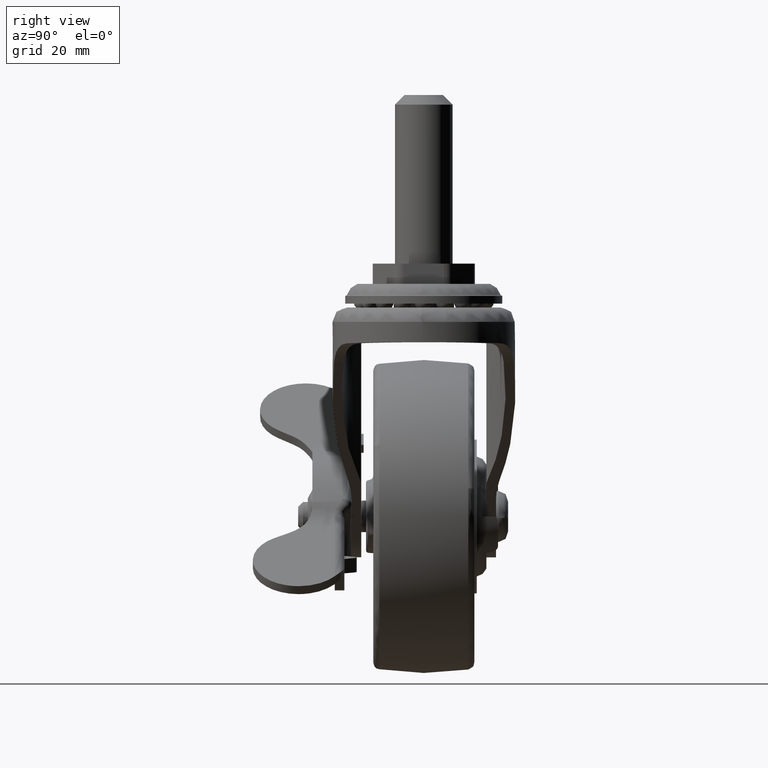
[diagram: clean part render]
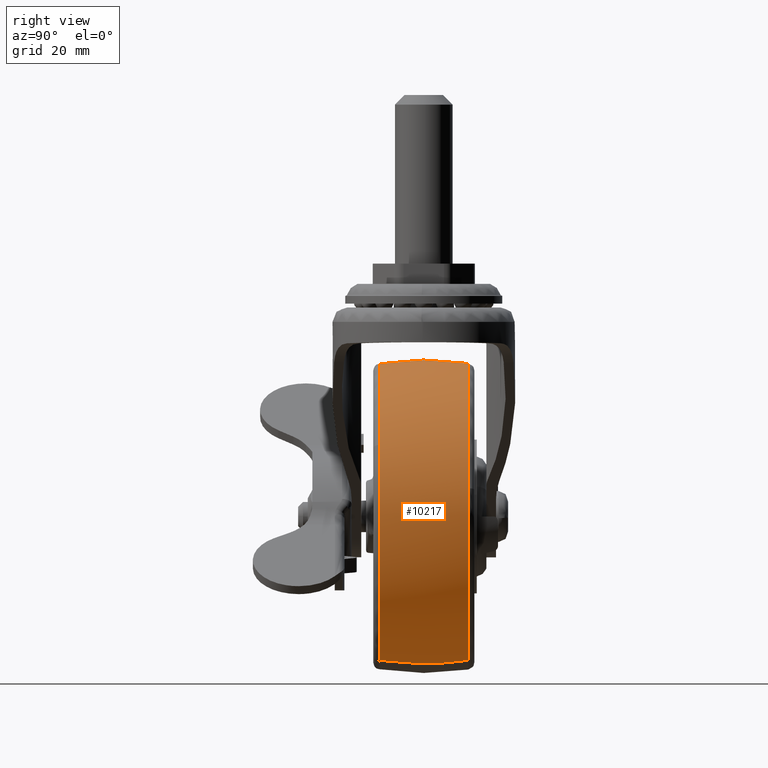
[diagram: same view with one face highlighted and labeled with its STEP entity id]
A machine part, right view. The second image highlights one B-rep face of the part: STEP entity #10217.
In plain terms, the highlighted face is a freeform B-spline surface patch.
Its self-contained STEP definition (entity closure, byte-faithful):
#10020=CARTESIAN_POINT('',(10.871347030075389,-9.230754666406899,-29.868779414635561));
#10021=VERTEX_POINT('',#10020);
#10035=CARTESIAN_POINT('',(28.085906765289689,-9.230754849649502,14.883277141317521));
#10036=VERTEX_POINT('',#10035);
#10037=CARTESIAN_POINT('',(10.871347030075389,-9.230754666406899,-29.868779414635561));
#10038=CARTESIAN_POINT('',(40.740124629583143,-9.230754753709810,-18.997432963431343));
#10039=CARTESIAN_POINT('',(29.868778198669869,-9.230754838762774,10.871346660396600));
#10040=CARTESIAN_POINT('',(29.116206012080955,-9.230754844650592,12.939021803958214));
#10041=CARTESIAN_POINT('',(28.085906765289685,-9.230754849649502,14.883277141317526));
#10049=(BOUNDED_CURVE()B_SPLINE_CURVE(2,(#10037,#10038,#10039,#10040,#10041),.UNSPECIFIED.,.F.,.U.)B_SPLINE_CURVE_WITH_KNOTS((3,2,3),(0.0,0.250000000000000,0.273792607912040),.UNSPECIFIED.)CURVE()GEOMETRIC_REPRESENTATION_ITEM()RATIONAL_B_SPLINE_CURVE((1.0,0.707106781186547,1.0,0.972125225938704,0.949556160436426))REPRESENTATION_ITEM(''));
#10050=EDGE_CURVE('',#10021,#10036,#10049,.T.);
#10095=CARTESIAN_POINT('',(-10.871346963976929,-9.230754635934762,29.868779233031539));
#10096=VERTEX_POINT('',#10095);
#10097=CARTESIAN_POINT('',(28.085906765289685,-9.230754849649502,14.883277141317526));
#10098=CARTESIAN_POINT('',(15.129817447317542,-9.230754736223782,39.332429567828221));
#10099=CARTESIAN_POINT('',(-10.871346963976929,-9.230754635934762,29.868779233031539));
#10107=(BOUNDED_CURVE()B_SPLINE_CURVE(2,(#10097,#10098,#10099),.UNSPECIFIED.,.F.,.U.)B_SPLINE_CURVE_WITH_KNOTS((3,3),(0.273792607912040,0.500000000000000),.UNSPECIFIED.)CURVE()GEOMETRIC_REPRESENTATION_ITEM()RATIONAL_B_SPLINE_CURVE((0.949556160436426,0.734981555247843,1.0))REPRESENTATION_ITEM(''));
#10108=EDGE_CURVE('',#10036,#10096,#10107,.T.);
#10129=CARTESIAN_POINT('',(10.819188683998970,-10.161977272480593,-29.725475541685963));
#10130=CARTESIAN_POINT('',(11.115655004978183,-5.117957756560456,-30.540010035037991));
#10131=CARTESIAN_POINT('',(11.115655004978180,0.0,-30.540010035037991));
#10132=CARTESIAN_POINT('',(11.115655004978178,5.117951902508675,-30.540010035038001));
#10133=CARTESIAN_POINT('',(10.819189357311210,10.161965816872327,-29.725477391596058));
#10134=CARTESIAN_POINT('',(40.544664225684940,-10.161977272480595,-18.906286857686986));
#10135=CARTESIAN_POINT('',(41.655665040016167,-5.117957756560456,-19.424355030059807));
#10136=CARTESIAN_POINT('',(41.655665040016181,0.0,-19.424355030059814));
#10137=CARTESIAN_POINT('',(41.655665040016174,5.117951902508676,-19.424355030059814));
#10138=CARTESIAN_POINT('',(40.544666748907268,10.161965816872328,-18.906288034284863));
#10139=CARTESIAN_POINT('',(29.725475541685963,-10.161977272480593,10.819188683998970));
#10140=CARTESIAN_POINT('',(30.540010035037991,-5.117957756560456,11.115655004978183));
#10141=CARTESIAN_POINT('',(30.540010035037991,0.0,11.115655004978180));
#10142=CARTESIAN_POINT('',(30.540010035038001,5.117951902508675,11.115655004978178));
#10143=CARTESIAN_POINT('',(29.725477391596058,10.161965816872327,10.819189357311210));
#10144=CARTESIAN_POINT('',(18.906286857686986,-10.161977272480595,40.544664225684940));
#10145=CARTESIAN_POINT('',(19.424355030059807,-5.117957756560456,41.655665040016167));
#10146=CARTESIAN_POINT('',(19.424355030059814,0.0,41.655665040016181));
#10147=CARTESIAN_POINT('',(19.424355030059814,5.117951902508676,41.655665040016174));
#10148=CARTESIAN_POINT('',(18.906288034284863,10.161965816872328,40.544666748907268));
#10149=CARTESIAN_POINT('',(-10.819188683998970,-10.161977272480593,29.725475541685963));
#10150=CARTESIAN_POINT('',(-11.115655004978183,-5.117957756560456,30.540010035037991));
#10151=CARTESIAN_POINT('',(-11.115655004978180,0.0,30.540010035037991));
#10152=CARTESIAN_POINT('',(-11.115655004978178,5.117951902508675,30.540010035038001));
#10153=CARTESIAN_POINT('',(-10.819189357311210,10.161965816872327,29.725477391596058));
#10161=(BOUNDED_SURFACE()B_SPLINE_SURFACE(2,2,((#10129,#10134,#10139,#10144,#10149),(#10130,#10135,#10140,#10145,#10150),(#10131,#10136,#10141,#10146,#10151),(#10132,#10137,#10142,#10147,#10152),(#10133,#10138,#10143,#10148,#10153)),.UNSPECIFIED.,.F.,.F.,.U.)B_SPLINE_SURFACE_WITH_KNOTS((3,2,3),(3,2,3),(0.0,10.405301568536130,20.810591513540849),(0.0,53.847763108502363,107.695526217004700),.UNSPECIFIED.)GEOMETRIC_REPRESENTATION_ITEM()RATIONAL_B_SPLINE_SURFACE(((0.960717205955353,0.679329651133623,0.960717205955353,0.679329651133623,0.960717205955353),(0.976615353773954,0.690571339264462,0.976615353773954,0.690571339264462,0.976615353773954),(1.0,0.707106781186548,1.0,0.707106781186548,1.0),(0.976615379896423,0.690571357735837,0.976615379896423,0.690571357735837,0.976615379896423),(0.960717241474298,0.679329676249310,0.960717241474298,0.679329676249310,0.960717241474298)))REPRESENTATION_ITEM('')SURFACE());
#10162=CARTESIAN_POINT('',(10.871347538361020,9.230745121537904,-29.868780811138791));
#10163=VERTEX_POINT('',#10162);
#10164=CARTESIAN_POINT('',(10.871347030075389,-9.230754666406899,-29.868779414635561));
#10165=CARTESIAN_POINT('',(10.993273683024610,-6.941435214759268,-30.203770128447751));
#10166=CARTESIAN_POINT('',(11.197289429227160,-0.781490673440717,-30.764298764280831));
#10167=CARTESIAN_POINT('',(11.074719982532709,5.415290644300327,-30.427541989231500));
#10168=CARTESIAN_POINT('',(10.871347538361020,9.230745121537904,-29.868780811138791));
#10169=B_SPLINE_CURVE_WITH_KNOTS('',3,(#10164,#10165,#10166,#10167,#10168),.UNSPECIFIED.,.F.,.U.,(4,1,4),(-8.582038E-009,6.950739378702208,18.535130670772642),.UNSPECIFIED.);
#10170=EDGE_CURVE('',#10021,#10163,#10169,.T.);
#10171=ORIENTED_EDGE('',*,*,#10170,.T.);
#10172=CARTESIAN_POINT('',(31.239189696058538,9.230745400095895,5.868831662411825));
#10173=VERTEX_POINT('',#10172);
#10174=CARTESIAN_POINT('',(10.871347538361020,9.230745121537904,-29.868780811138791));
#10175=CARTESIAN_POINT('',(36.219844334496692,9.230745260828881,-20.642682318162645));
#10176=CARTESIAN_POINT('',(31.239189696058538,9.230745400095895,5.868831662411825));
#10184=(BOUNDED_CURVE()B_SPLINE_CURVE(2,(#10174,#10175,#10176),.UNSPECIFIED.,.F.,.U.)B_SPLINE_CURVE_WITH_KNOTS((3,3),(0.0,0.222006111787684),.UNSPECIFIED.)CURVE()GEOMETRIC_REPRESENTATION_ITEM()RATIONAL_B_SPLINE_CURVE((1.0,0.739903661288984,0.941751137357530))REPRESENTATION_ITEM(''));
#10185=EDGE_CURVE('',#10163,#10173,#10184,.T.);
#10186=ORIENTED_EDGE('',*,*,#10185,.T.);
#10187=CARTESIAN_POINT('',(-10.871347538364070,9.230745121480627,29.868780811147179));
#10188=VERTEX_POINT('',#10187);
#10189=CARTESIAN_POINT('',(31.239189696058538,9.230745400095895,5.868831662411825));
#10190=CARTESIAN_POINT('',(30.758746174999057,9.230745390416413,8.426182463100892));
#10191=CARTESIAN_POINT('',(29.868779092748241,9.230745379011214,10.871346627155130));
#10192=CARTESIAN_POINT('',(18.997430676597482,9.230745239691576,40.740127273390115));
#10193=CARTESIAN_POINT('',(-10.871347538364070,9.230745121480627,29.868780811147179));
#10201=(BOUNDED_CURVE()B_SPLINE_CURVE(2,(#10189,#10190,#10191,#10192,#10193),.UNSPECIFIED.,.F.,.U.)B_SPLINE_CURVE_WITH_KNOTS((3,2,3),(0.222006111787684,0.250000000000000,0.500000000000000),.UNSPECIFIED.)CURVE()GEOMETRIC_REPRESENTATION_ITEM()RATIONAL_B_SPLINE_CURVE((0.941751137357530,0.967203119897564,1.0,0.707106781186547,1.0))REPRESENTATION_ITEM(''));
#10202=EDGE_CURVE('',#10173,#10188,#10201,.T.);
#10203=ORIENTED_EDGE('',*,*,#10202,.T.);
#10204=CARTESIAN_POINT('',(-10.871346963976929,-9.230754635934762,29.868779233031539));
#10205=CARTESIAN_POINT('',(-10.978031103642300,-7.227612249931327,30.161891487280219));
#10206=CARTESIAN_POINT('',(-11.121853172588949,-3.189698277491780,30.557039359980781));
#10207=CARTESIAN_POINT('',(-11.126963737786721,2.996591771918607,30.571080521959530));
#10208=CARTESIAN_POINT('',(-10.983113582794861,7.132204075573485,30.175855483486679));
#10209=CARTESIAN_POINT('',(-10.871347538364070,9.230745121480627,29.868780811147179));
#10210=B_SPLINE_CURVE_WITH_KNOTS('',3,(#10204,#10205,#10206,#10207,#10208,#10209),.UNSPECIFIED.,.F.,.U.,(4,1,1,4),(-8.582592E-009,6.081851928650805,12.163632190191480,18.535130640357249),.UNSPECIFIED.);
#10211=EDGE_CURVE('',#10096,#10188,#10210,.T.);
#10212=ORIENTED_EDGE('',*,*,#10211,.F.);
#10213=ORIENTED_EDGE('',*,*,#10108,.F.);
#10214=ORIENTED_EDGE('',*,*,#10050,.F.);
#10215=EDGE_LOOP('',(#10171,#10186,#10203,#10212,#10213,#10214));
#10216=FACE_OUTER_BOUND('',#10215,.T.);
#10217=ADVANCED_FACE('',(#10216),#10161,.T.);